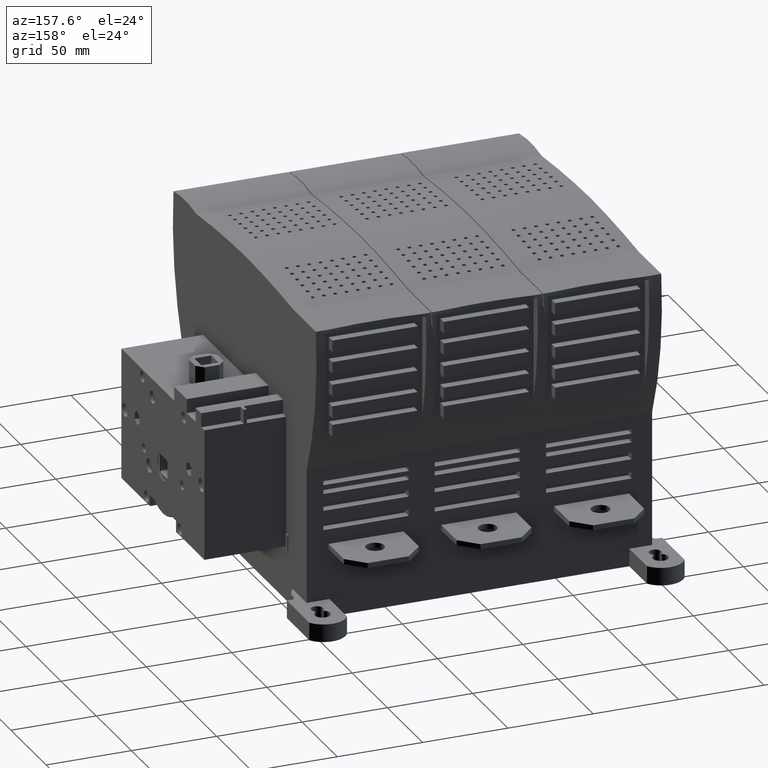
[diagram: clean part render]
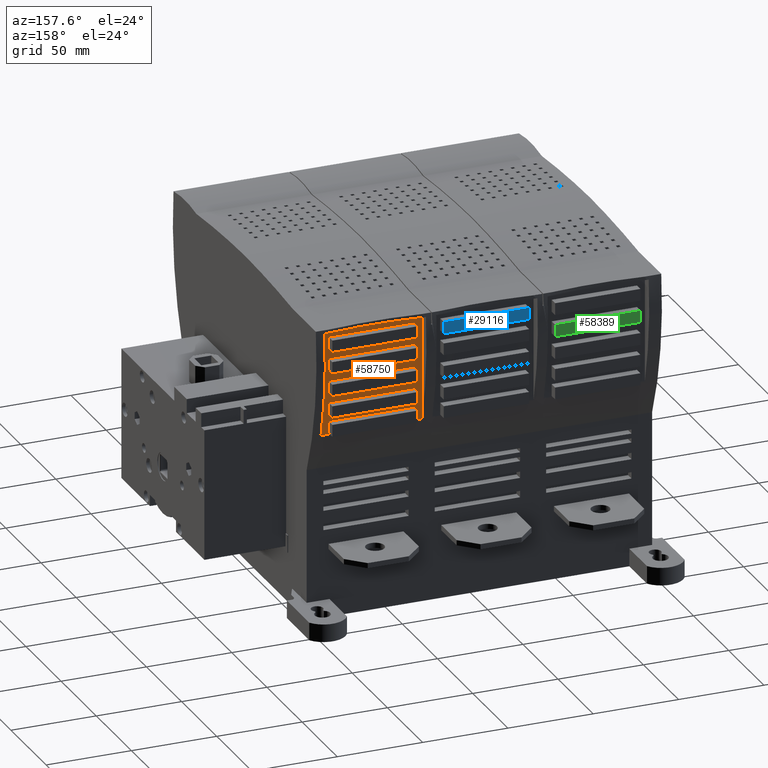
[diagram: same view with three faces highlighted in distinct colors, each labeled with its STEP entity id]
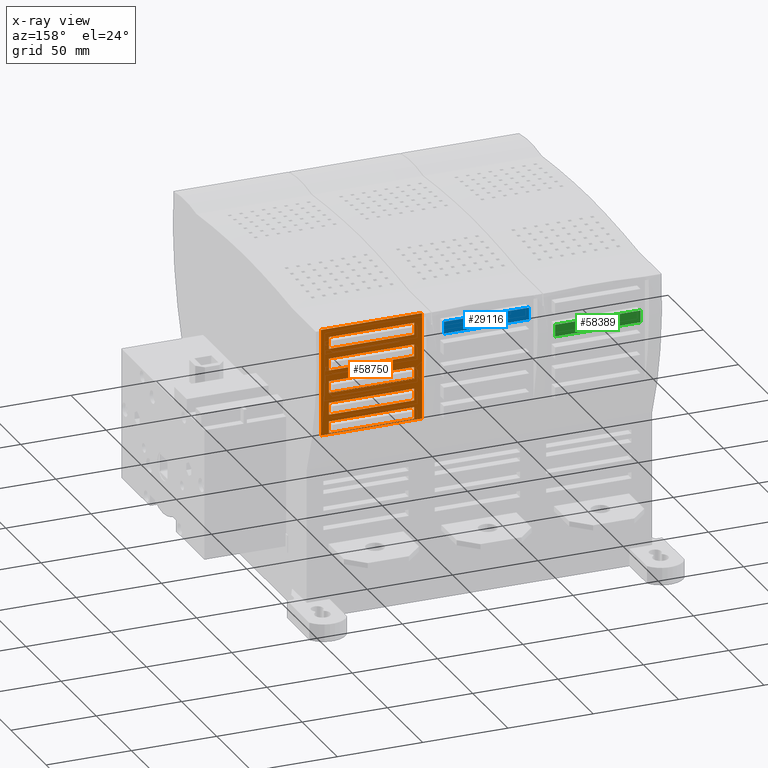
[diagram: x-ray of the same camera — body ghosted, the three highlighted faces saturated]
A machine part, auxiliary view with three faces highlighted in distinct colors.
The next image is the same camera in x-ray (body ghosted, the three faces saturated) — at least one of them is partly hidden behind the body in this view.
Their STEP definitions:

[orange] entity #58750 — the highlighted planar face has unit normal (0, 1, 0).
#17=DIRECTION('',(1.E0,0.E0,0.E0));
#18=VECTOR('',#17,5.9278E1);
#19=CARTESIAN_POINT('',(3.6782E1,9.5928E1,2.278168691857E1));
#20=LINE('',#19,#18);
#20260=DIRECTION('',(0.E0,0.E0,-1.E0));
#20261=VECTOR('',#20260,6.259431308143E1);
#20262=CARTESIAN_POINT('',(9.606E1,9.5928E1,8.5376E1));
#20263=LINE('',#20262,#20261);
#20264=DIRECTION('',(1.E0,0.E0,0.E0));
#20265=VECTOR('',#20264,5.9278E1);
#20266=CARTESIAN_POINT('',(3.6782E1,9.5928E1,8.5376E1));
#20267=LINE('',#20266,#20265);
#20268=DIRECTION('',(0.E0,0.E0,1.E0));
#20269=VECTOR('',#20268,6.259431308143E1);
#20270=CARTESIAN_POINT('',(3.6782E1,9.5928E1,2.278168691857E1));
#20271=LINE('',#20270,#20269);
#20272=DIRECTION('',(1.E0,0.E0,0.E0));
#20273=VECTOR('',#20272,5.E1);
#20274=CARTESIAN_POINT('',(4.1422E1,9.5928E1,8.0376E1));
#20275=LINE('',#20274,#20273);
#20276=DIRECTION('',(0.E0,0.E0,-1.E0));
#20277=VECTOR('',#20276,7.E0);
#20278=CARTESIAN_POINT('',(9.1422E1,9.5928E1,8.0376E1));
#20279=LINE('',#20278,#20277);
#20280=DIRECTION('',(-1.E0,0.E0,0.E0));
#20281=VECTOR('',#20280,5.E1);
#20282=CARTESIAN_POINT('',(9.1422E1,9.5928E1,7.3376E1));
#20283=LINE('',#20282,#20281);
#20284=DIRECTION('',(0.E0,0.E0,1.E0));
#20285=VECTOR('',#20284,7.E0);
#20286=CARTESIAN_POINT('',(4.1422E1,9.5928E1,7.3376E1));
#20287=LINE('',#20286,#20285);
#20288=DIRECTION('',(1.E0,0.E0,0.E0));
#20289=VECTOR('',#20288,5.E1);
#20290=CARTESIAN_POINT('',(4.1422E1,9.5928E1,6.7581E1));
#20291=LINE('',#20290,#20289);
#20292=DIRECTION('',(0.E0,0.E0,-1.E0));
#20293=VECTOR('',#20292,7.E0);
#20294=CARTESIAN_POINT('',(9.1422E1,9.5928E1,6.7581E1));
#20295=LINE('',#20294,#20293);
#20296=DIRECTION('',(-1.E0,0.E0,0.E0));
#20297=VECTOR('',#20296,5.E1);
#20298=CARTESIAN_POINT('',(9.1422E1,9.5928E1,6.0581E1));
#20299=LINE('',#20298,#20297);
#20300=DIRECTION('',(0.E0,0.E0,1.E0));
#20301=VECTOR('',#20300,7.E0);
#20302=CARTESIAN_POINT('',(4.1422E1,9.5928E1,6.0581E1));
#20303=LINE('',#20302,#20301);
#20304=DIRECTION('',(1.E0,0.E0,0.E0));
#20305=VECTOR('',#20304,5.E1);
#20306=CARTESIAN_POINT('',(4.1422E1,9.5928E1,5.4184E1));
#20307=LINE('',#20306,#20305);
#20308=DIRECTION('',(0.E0,0.E0,-1.E0));
#20309=VECTOR('',#20308,7.E0);
#20310=CARTESIAN_POINT('',(9.1422E1,9.5928E1,5.4184E1));
#20311=LINE('',#20310,#20309);
#20312=DIRECTION('',(-1.E0,0.E0,0.E0));
#20313=VECTOR('',#20312,5.E1);
#20314=CARTESIAN_POINT('',(9.1422E1,9.5928E1,4.7184E1));
#20315=LINE('',#20314,#20313);
#20316=DIRECTION('',(0.E0,0.E0,1.E0));
#20317=VECTOR('',#20316,7.E0);
#20318=CARTESIAN_POINT('',(4.1422E1,9.5928E1,4.7184E1));
#20319=LINE('',#20318,#20317);
#20320=DIRECTION('',(1.E0,0.E0,0.E0));
#20321=VECTOR('',#20320,5.E1);
#20322=CARTESIAN_POINT('',(4.1422E1,9.5928E1,4.1357E1));
#20323=LINE('',#20322,#20321);
#20324=DIRECTION('',(0.E0,0.E0,-1.E0));
#20325=VECTOR('',#20324,7.E0);
#20326=CARTESIAN_POINT('',(9.1422E1,9.5928E1,4.1357E1));
#20327=LINE('',#20326,#20325);
#20328=DIRECTION('',(-1.E0,0.E0,0.E0));
#20329=VECTOR('',#20328,5.E1);
#20330=CARTESIAN_POINT('',(9.1422E1,9.5928E1,3.4357E1));
#20331=LINE('',#20330,#20329);
#20332=DIRECTION('',(0.E0,0.E0,1.E0));
#20333=VECTOR('',#20332,7.E0);
#20334=CARTESIAN_POINT('',(4.1422E1,9.5928E1,3.4357E1));
#20335=LINE('',#20334,#20333);
#20336=DIRECTION('',(1.E0,0.E0,0.E0));
#20337=VECTOR('',#20336,5.E1);
#20338=CARTESIAN_POINT('',(4.1422E1,9.5928E1,3.0357E1));
#20339=LINE('',#20338,#20337);
#20340=DIRECTION('',(0.E0,0.E0,-1.E0));
#20341=VECTOR('',#20340,7.E0);
#20342=CARTESIAN_POINT('',(9.1422E1,9.5928E1,3.0357E1));
#20343=LINE('',#20342,#20341);
#20344=DIRECTION('',(-1.E0,0.E0,0.E0));
#20345=VECTOR('',#20344,5.E1);
#20346=CARTESIAN_POINT('',(9.1422E1,9.5928E1,2.3357E1));
#20347=LINE('',#20346,#20345);
#20348=DIRECTION('',(0.E0,0.E0,1.E0));
#20349=VECTOR('',#20348,7.E0);
#20350=CARTESIAN_POINT('',(4.1422E1,9.5928E1,2.3357E1));
#20351=LINE('',#20350,#20349);
#21310=CARTESIAN_POINT('',(3.6782E1,9.5928E1,8.5376E1));
#21311=CARTESIAN_POINT('',(9.606E1,9.5928E1,8.5376E1));
#21312=VERTEX_POINT('',#21310);
#21313=VERTEX_POINT('',#21311);
#21314=CARTESIAN_POINT('',(3.6782E1,9.5928E1,2.278168691857E1));
#21315=CARTESIAN_POINT('',(9.606E1,9.5928E1,2.278168691857E1));
#21316=VERTEX_POINT('',#21314);
#21317=VERTEX_POINT('',#21315);
#21438=CARTESIAN_POINT('',(4.1422E1,9.5928E1,8.0376E1));
#21439=CARTESIAN_POINT('',(9.1422E1,9.5928E1,8.0376E1));
#21440=VERTEX_POINT('',#21438);
#21441=VERTEX_POINT('',#21439);
#21442=CARTESIAN_POINT('',(9.1422E1,9.5928E1,7.3376E1));
#21443=VERTEX_POINT('',#21442);
#21444=CARTESIAN_POINT('',(4.1422E1,9.5928E1,7.3376E1));
#21445=VERTEX_POINT('',#21444);
#21446=CARTESIAN_POINT('',(4.1422E1,9.5928E1,6.7581E1));
#21447=CARTESIAN_POINT('',(9.1422E1,9.5928E1,6.7581E1));
#21448=VERTEX_POINT('',#21446);
#21449=VERTEX_POINT('',#21447);
#21450=CARTESIAN_POINT('',(9.1422E1,9.5928E1,6.0581E1));
#21451=VERTEX_POINT('',#21450);
#21452=CARTESIAN_POINT('',(4.1422E1,9.5928E1,6.0581E1));
#21453=VERTEX_POINT('',#21452);
#21454=CARTESIAN_POINT('',(4.1422E1,9.5928E1,5.4184E1));
#21455=CARTESIAN_POINT('',(9.1422E1,9.5928E1,5.4184E1));
#21456=VERTEX_POINT('',#21454);
#21457=VERTEX_POINT('',#21455);
#21458=CARTESIAN_POINT('',(9.1422E1,9.5928E1,4.7184E1));
#21459=VERTEX_POINT('',#21458);
#21460=CARTESIAN_POINT('',(4.1422E1,9.5928E1,4.7184E1));
#21461=VERTEX_POINT('',#21460);
#21462=CARTESIAN_POINT('',(4.1422E1,9.5928E1,4.1357E1));
#21463=CARTESIAN_POINT('',(9.1422E1,9.5928E1,4.1357E1));
#21464=VERTEX_POINT('',#21462);
#21465=VERTEX_POINT('',#21463);
#21466=CARTESIAN_POINT('',(9.1422E1,9.5928E1,3.4357E1));
#21467=VERTEX_POINT('',#21466);
#21468=CARTESIAN_POINT('',(4.1422E1,9.5928E1,3.4357E1));
#21469=VERTEX_POINT('',#21468);
#21470=CARTESIAN_POINT('',(4.1422E1,9.5928E1,3.0357E1));
#21471=CARTESIAN_POINT('',(9.1422E1,9.5928E1,3.0357E1));
#21472=VERTEX_POINT('',#21470);
#21473=VERTEX_POINT('',#21471);
#21474=CARTESIAN_POINT('',(9.1422E1,9.5928E1,2.3357E1));
#21475=VERTEX_POINT('',#21474);
#21476=CARTESIAN_POINT('',(4.1422E1,9.5928E1,2.3357E1));
#21477=VERTEX_POINT('',#21476);
#58688=CARTESIAN_POINT('',(1.491E2,9.5928E1,0.E0));
#58689=DIRECTION('',(0.E0,1.E0,0.E0));
#58690=DIRECTION('',(1.E0,0.E0,0.E0));
#58691=AXIS2_PLACEMENT_3D('',#58688,#58689,#58690);
#58692=PLANE('',#58691);
#58693=ORIENTED_EDGE('',*,*,#27081,.T.);
#58695=ORIENTED_EDGE('',*,*,#58694,.F.);
#58696=ORIENTED_EDGE('',*,*,#58668,.F.);
#58697=ORIENTED_EDGE('',*,*,#58682,.F.);
#58698=EDGE_LOOP('',(#58693,#58695,#58696,#58697));
#58699=FACE_OUTER_BOUND('',#58698,.F.);
#58701=ORIENTED_EDGE('',*,*,#58700,.T.);
#58703=ORIENTED_EDGE('',*,*,#58702,.T.);
#58705=ORIENTED_EDGE('',*,*,#58704,.T.);
#58707=ORIENTED_EDGE('',*,*,#58706,.T.);
#58708=EDGE_LOOP('',(#58701,#58703,#58705,#58707));
#58709=FACE_BOUND('',#58708,.F.);
#58711=ORIENTED_EDGE('',*,*,#58710,.T.);
#58713=ORIENTED_EDGE('',*,*,#58712,.T.);
#58715=ORIENTED_EDGE('',*,*,#58714,.T.);
#58717=ORIENTED_EDGE('',*,*,#58716,.T.);
#58718=EDGE_LOOP('',(#58711,#58713,#58715,#58717));
#58719=FACE_BOUND('',#58718,.F.);
#58721=ORIENTED_EDGE('',*,*,#58720,.T.);
#58723=ORIENTED_EDGE('',*,*,#58722,.T.);
#58725=ORIENTED_EDGE('',*,*,#58724,.T.);
#58727=ORIENTED_EDGE('',*,*,#58726,.T.);
#58728=EDGE_LOOP('',(#58721,#58723,#58725,#58727));
#58729=FACE_BOUND('',#58728,.F.);
#58731=ORIENTED_EDGE('',*,*,#58730,.T.);
#58733=ORIENTED_EDGE('',*,*,#58732,.T.);
#58735=ORIENTED_EDGE('',*,*,#58734,.T.);
#58737=ORIENTED_EDGE('',*,*,#58736,.T.);
#58738=EDGE_LOOP('',(#58731,#58733,#58735,#58737));
#58739=FACE_BOUND('',#58738,.F.);
#58741=ORIENTED_EDGE('',*,*,#58740,.T.);
#58743=ORIENTED_EDGE('',*,*,#58742,.T.);
#58745=ORIENTED_EDGE('',*,*,#58744,.T.);
#58747=ORIENTED_EDGE('',*,*,#58746,.T.);
#58748=EDGE_LOOP('',(#58741,#58743,#58745,#58747));
#58749=FACE_BOUND('',#58748,.F.);
#58750=ADVANCED_FACE('',(#58699,#58709,#58719,#58729,#58739,#58749),#58692,.T.);
#27081=EDGE_CURVE('',#21316,#21317,#20,.T.);
#58668=EDGE_CURVE('',#21312,#21313,#20267,.T.);
#58682=EDGE_CURVE('',#21316,#21312,#20271,.T.);
#58694=EDGE_CURVE('',#21313,#21317,#20263,.T.);
#58700=EDGE_CURVE('',#21440,#21441,#20275,.T.);
#58702=EDGE_CURVE('',#21441,#21443,#20279,.T.);
#58704=EDGE_CURVE('',#21443,#21445,#20283,.T.);
#58706=EDGE_CURVE('',#21445,#21440,#20287,.T.);
#58710=EDGE_CURVE('',#21448,#21449,#20291,.T.);
#58712=EDGE_CURVE('',#21449,#21451,#20295,.T.);
#58714=EDGE_CURVE('',#21451,#21453,#20299,.T.);
#58716=EDGE_CURVE('',#21453,#21448,#20303,.T.);
#58720=EDGE_CURVE('',#21456,#21457,#20307,.T.);
#58722=EDGE_CURVE('',#21457,#21459,#20311,.T.);
#58724=EDGE_CURVE('',#21459,#21461,#20315,.T.);
#58726=EDGE_CURVE('',#21461,#21456,#20319,.T.);
#58730=EDGE_CURVE('',#21464,#21465,#20323,.T.);
#58732=EDGE_CURVE('',#21465,#21467,#20327,.T.);
#58734=EDGE_CURVE('',#21467,#21469,#20331,.T.);
#58736=EDGE_CURVE('',#21469,#21464,#20335,.T.);
#58740=EDGE_CURVE('',#21472,#21473,#20339,.T.);
#58742=EDGE_CURVE('',#21473,#21475,#20343,.T.);
#58744=EDGE_CURVE('',#21475,#21477,#20347,.T.);
#58746=EDGE_CURVE('',#21477,#21472,#20351,.T.);

[blue] entity #29116 — the highlighted planar face has unit normal (0, 1, 0).
#1597=DIRECTION('',(1.E0,0.E0,0.E0));
#1598=VECTOR('',#1597,5.E1);
#1599=CARTESIAN_POINT('',(-2.3858E1,1.00928E2,8.0376E1));
#1600=LINE('',#1599,#1598);
#1601=DIRECTION('',(0.E0,0.E0,1.E0));
#1602=VECTOR('',#1601,7.E0);
#1603=CARTESIAN_POINT('',(-2.3858E1,1.00928E2,7.3376E1));
#1604=LINE('',#1603,#1602);
#1605=DIRECTION('',(-1.E0,0.E0,0.E0));
#1606=VECTOR('',#1605,5.E1);
#1607=CARTESIAN_POINT('',(2.6142E1,1.00928E2,7.3376E1));
#1608=LINE('',#1607,#1606);
#1609=DIRECTION('',(0.E0,0.E0,-1.E0));
#1610=VECTOR('',#1609,7.E0);
#1611=CARTESIAN_POINT('',(2.6142E1,1.00928E2,8.0376E1));
#1612=LINE('',#1611,#1610);
#21542=CARTESIAN_POINT('',(-2.3858E1,1.00928E2,8.0376E1));
#21543=CARTESIAN_POINT('',(2.6142E1,1.00928E2,8.0376E1));
#21544=VERTEX_POINT('',#21542);
#21545=VERTEX_POINT('',#21543);
#21546=CARTESIAN_POINT('',(2.6142E1,1.00928E2,7.3376E1));
#21547=VERTEX_POINT('',#21546);
#21548=CARTESIAN_POINT('',(-2.3858E1,1.00928E2,7.3376E1));
#21549=VERTEX_POINT('',#21548);
#29105=CARTESIAN_POINT('',(1.491E2,1.00928E2,0.E0));
#29106=DIRECTION('',(0.E0,1.E0,0.E0));
#29107=DIRECTION('',(0.E0,0.E0,-1.E0));
#29108=AXIS2_PLACEMENT_3D('',#29105,#29106,#29107);
#29109=PLANE('',#29108);
#29110=ORIENTED_EDGE('',*,*,#29057,.F.);
#29111=ORIENTED_EDGE('',*,*,#29072,.F.);
#29112=ORIENTED_EDGE('',*,*,#29086,.F.);
#29113=ORIENTED_EDGE('',*,*,#29099,.F.);
#29114=EDGE_LOOP('',(#29110,#29111,#29112,#29113));
#29115=FACE_OUTER_BOUND('',#29114,.F.);
#29116=ADVANCED_FACE('',(#29115),#29109,.T.);
#29057=EDGE_CURVE('',#21544,#21545,#1600,.T.);
#29072=EDGE_CURVE('',#21549,#21544,#1604,.T.);
#29086=EDGE_CURVE('',#21547,#21549,#1608,.T.);
#29099=EDGE_CURVE('',#21545,#21547,#1612,.T.);

[green] entity #58389 — the highlighted planar face has unit normal (0, 1, 0).
#20123=DIRECTION('',(1.E0,0.E0,0.E0));
#20124=VECTOR('',#20123,5.E1);
#20125=CARTESIAN_POINT('',(-8.9138E1,1.00928E2,6.7581E1));
#20126=LINE('',#20125,#20124);
#20127=DIRECTION('',(0.E0,0.E0,1.E0));
#20128=VECTOR('',#20127,7.E0);
#20129=CARTESIAN_POINT('',(-8.9138E1,1.00928E2,6.0581E1));
#20130=LINE('',#20129,#20128);
#20131=DIRECTION('',(-1.E0,0.E0,0.E0));
#20132=VECTOR('',#20131,5.E1);
#20133=CARTESIAN_POINT('',(-3.9138E1,1.00928E2,6.0581E1));
#20134=LINE('',#20133,#20132);
#20135=DIRECTION('',(0.E0,0.E0,-1.E0));
#20136=VECTOR('',#20135,7.E0);
#20137=CARTESIAN_POINT('',(-3.9138E1,1.00928E2,6.7581E1));
#20138=LINE('',#20137,#20136);
#21630=CARTESIAN_POINT('',(-8.9138E1,1.00928E2,6.7581E1));
#21631=CARTESIAN_POINT('',(-3.9138E1,1.00928E2,6.7581E1));
#21632=VERTEX_POINT('',#21630);
#21633=VERTEX_POINT('',#21631);
#21634=CARTESIAN_POINT('',(-3.9138E1,1.00928E2,6.0581E1));
#21635=VERTEX_POINT('',#21634);
#21636=CARTESIAN_POINT('',(-8.9138E1,1.00928E2,6.0581E1));
#21637=VERTEX_POINT('',#21636);
#58374=CARTESIAN_POINT('',(1.491E2,1.00928E2,0.E0));
#58375=DIRECTION('',(0.E0,1.E0,0.E0));
#58376=DIRECTION('',(0.E0,0.E0,-1.E0));
#58377=AXIS2_PLACEMENT_3D('',#58374,#58375,#58376);
#58378=PLANE('',#58377);
#58380=ORIENTED_EDGE('',*,*,#58379,.F.);
#58382=ORIENTED_EDGE('',*,*,#58381,.F.);
#58384=ORIENTED_EDGE('',*,*,#58383,.F.);
#58386=ORIENTED_EDGE('',*,*,#58385,.F.);
#58387=EDGE_LOOP('',(#58380,#58382,#58384,#58386));
#58388=FACE_OUTER_BOUND('',#58387,.F.);
#58389=ADVANCED_FACE('',(#58388),#58378,.T.);
#58379=EDGE_CURVE('',#21632,#21633,#20126,.T.);
#58381=EDGE_CURVE('',#21637,#21632,#20130,.T.);
#58383=EDGE_CURVE('',#21635,#21637,#20134,.T.);
#58385=EDGE_CURVE('',#21633,#21635,#20138,.T.);